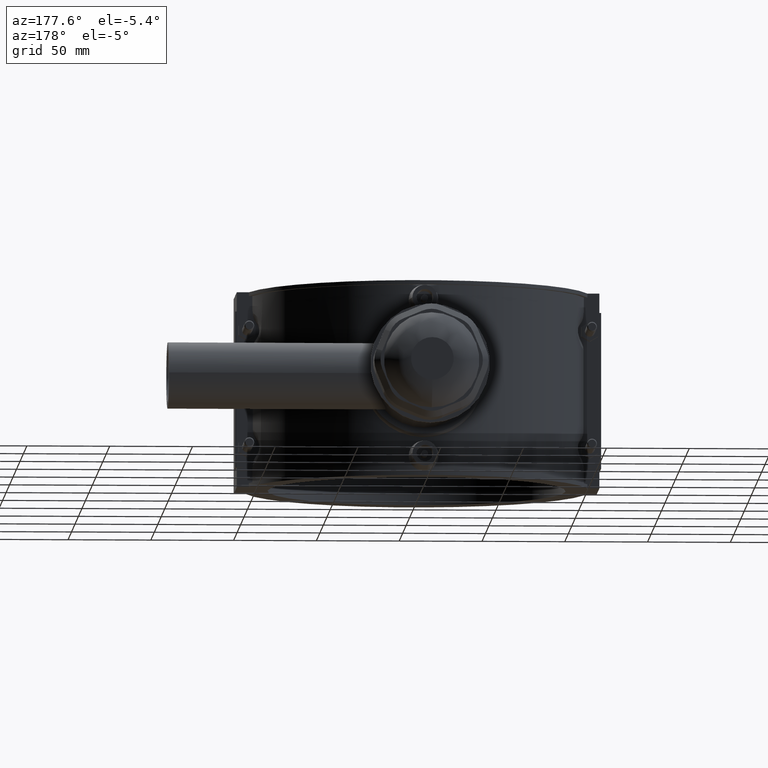
[diagram: clean part render]
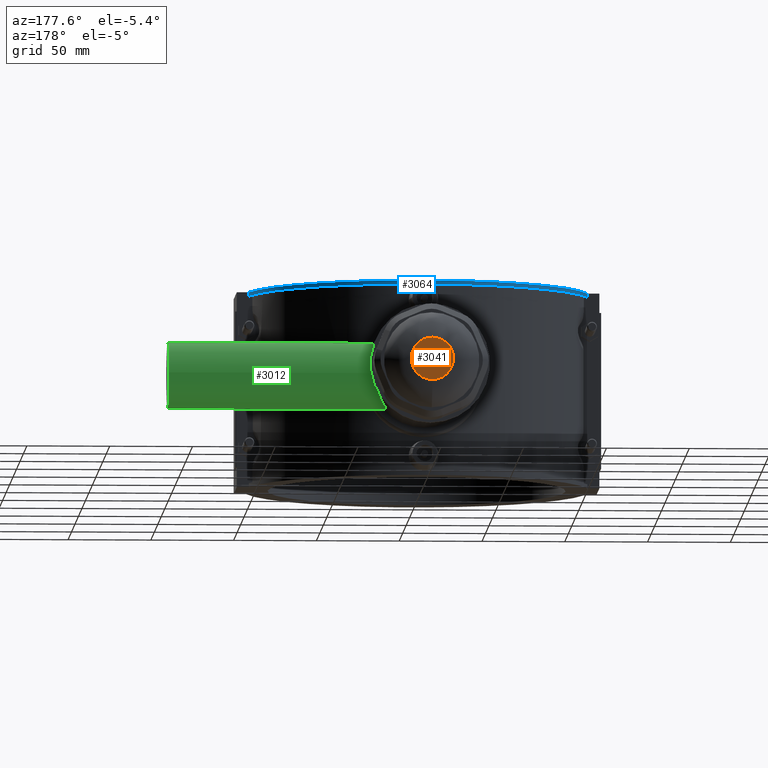
[diagram: same view with three faces highlighted in distinct colors, each labeled with its STEP entity id]
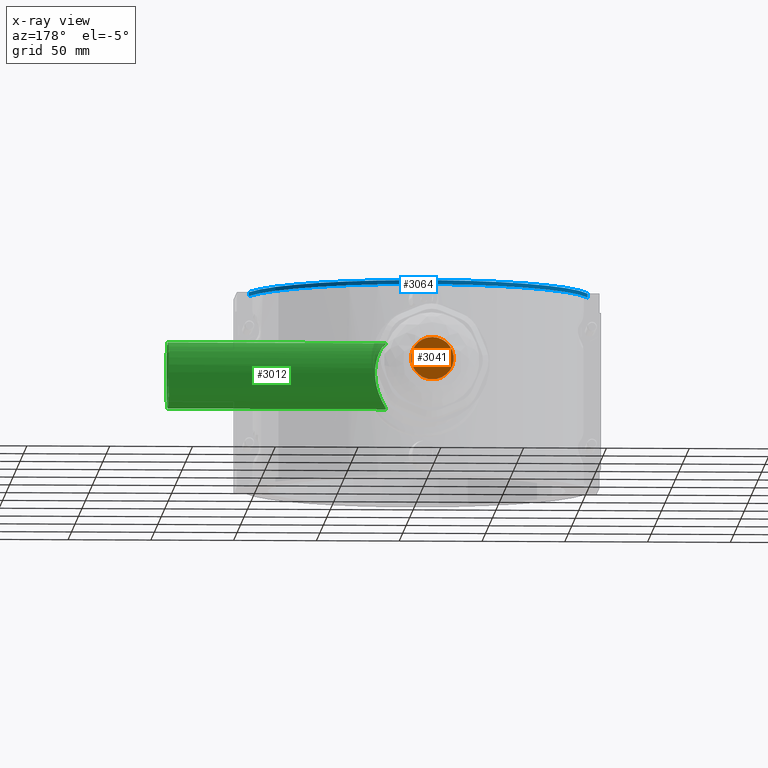
[diagram: x-ray of the same camera — body ghosted, the three highlighted faces saturated]
A machine part, auxiliary view with three faces highlighted in distinct colors.
The next image is the same camera in x-ray (body ghosted, the three faces saturated) — at least one of them is partly hidden behind the body in this view.
Their STEP definitions:

[orange] entity #3041 — the highlighted planar face has unit normal (0, 1, 0).
#613=PLANE('',#3248);
#732=CIRCLE('',#3247,12.8486865744541);
#894=FACE_OUTER_BOUND('',#1081,.T.);
#1081=EDGE_LOOP('',(#2200));
#1387=VERTEX_POINT('',#4726);
#1706=EDGE_CURVE('',#1387,#1387,#732,.T.);
#2200=ORIENTED_EDGE('',*,*,#1706,.F.);
#3041=ADVANCED_FACE('',(#894),#613,.T.);
#3247=AXIS2_PLACEMENT_3D('',#4727,#3627,#3628);
#3248=AXIS2_PLACEMENT_3D('',#4731,#3629,#3630);
#3627=DIRECTION('center_axis',(0.,-1.,-3.06161699786838E-16));
#3628=DIRECTION('ref_axis',(-6.12323399573677E-17,-3.45630043410822E-16,
1.));
#3629=DIRECTION('center_axis',(0.,1.,3.06161699786838E-16));
#3630=DIRECTION('ref_axis',(0.,0.,1.));
#4726=CARTESIAN_POINT('',(2.36026543299793E-15,228.,-12.8486865744541));
#4727=CARTESIAN_POINT('Origin',(0.,228.,4.22503145705837E-14));
#4731=CARTESIAN_POINT('Origin',(0.,228.,4.22503145705837E-14));

[blue] entity #3064 — the highlighted cylindrical surface (partial cylindrical patch) has radius 104.652 mm, axis along (0, 0, -1).
#118=LINE('',#5247,#397);
#119=LINE('',#5250,#398);
#397=VECTOR('',#3740,2.36);
#398=VECTOR('',#3743,2.36);
#748=CIRCLE('',#3286,104.652);
#749=CIRCLE('',#3287,104.652);
#917=FACE_OUTER_BOUND('',#1109,.T.);
#1109=EDGE_LOOP('',(#2310,#2311,#2312,#2313));
#1428=VERTEX_POINT('',#5243);
#1429=VERTEX_POINT('',#5244);
#1430=VERTEX_POINT('',#5246);
#1431=VERTEX_POINT('',#5248);
#1764=EDGE_CURVE('',#1428,#1429,#748,.T.);
#1765=EDGE_CURVE('',#1430,#1428,#118,.T.);
#1766=EDGE_CURVE('',#1431,#1430,#749,.T.);
#1767=EDGE_CURVE('',#1429,#1431,#119,.T.);
#2310=ORIENTED_EDGE('',*,*,#1764,.F.);
#2311=ORIENTED_EDGE('',*,*,#1765,.F.);
#2312=ORIENTED_EDGE('',*,*,#1766,.F.);
#2313=ORIENTED_EDGE('',*,*,#1767,.F.);
#2981=CYLINDRICAL_SURFACE('',#3285,104.652);
#3064=ADVANCED_FACE('',(#917),#2981,.T.);
#3285=AXIS2_PLACEMENT_3D('',#5242,#3736,#3737);
#3286=AXIS2_PLACEMENT_3D('',#5245,#3738,#3739);
#3287=AXIS2_PLACEMENT_3D('',#5249,#3741,#3742);
#3736=DIRECTION('center_axis',(0.,0.,-1.));
#3737=DIRECTION('ref_axis',(0.976614427290077,0.21499828001376,0.));
#3738=DIRECTION('center_axis',(0.,0.,1.));
#3739=DIRECTION('ref_axis',(0.976614427290077,0.21499828001376,0.));
#3740=DIRECTION('',(0.,0.,1.));
#3741=DIRECTION('center_axis',(0.,0.,-1.));
#3742=DIRECTION('ref_axis',(0.976614427290077,0.21499828001376,0.));
#3743=DIRECTION('',(0.,0.,-1.));
#5242=CARTESIAN_POINT('Origin',(0.,0.,59.));
#5243=CARTESIAN_POINT('',(102.204653044761,22.5,59.));
#5244=CARTESIAN_POINT('',(-102.204653044761,22.5,59.));
#5245=CARTESIAN_POINT('Origin',(0.,0.,59.));
#5246=CARTESIAN_POINT('',(102.204653044761,22.5,56.64));
#5247=CARTESIAN_POINT('',(102.204653044761,22.5,59.));
#5248=CARTESIAN_POINT('',(-102.204653044761,22.5,56.64));
#5249=CARTESIAN_POINT('Origin',(0.,0.,56.64));
#5250=CARTESIAN_POINT('',(-102.204653044761,22.5,59.));

[green] entity #3012 — the highlighted cylindrical surface (bore or boss wall) has radius 20 mm, axis along (1, 0, 0).
#709=CIRCLE('',#3197,20.);
#814=FACE_BOUND('',#1049,.T.);
#865=FACE_OUTER_BOUND('',#1048,.T.);
#1048=EDGE_LOOP('',(#2069,#2070,#2071,#2072,#2073,#2074,#2075,#2076,#2077));
#1049=EDGE_LOOP('',(#2078));
#1278=B_SPLINE_CURVE_WITH_KNOTS('',3,(#4445,#4446,#4447,#4448),
 .UNSPECIFIED.,.F.,.F.,(4,4),(1.60551107625556,2.11294538243362),
 .UNSPECIFIED.);
#1279=B_SPLINE_CURVE_WITH_KNOTS('',3,(#4450,#4451,#4452,#4453,#4454,#4455,
#4456,#4457,#4458,#4459),.UNSPECIFIED.,.F.,.F.,(4,2,2,2,4),(-0.335176611796407,
-0.261969658802018,-0.186269817086855,-0.0576919761793665,0.),
 .UNSPECIFIED.);
#1280=B_SPLINE_CURVE_WITH_KNOTS('',3,(#4461,#4462,#4463,#4464,#4465,#4466),
 .UNSPECIFIED.,.F.,.F.,(4,2,4),(10.8634433364735,11.207597531341,11.2882790206673),
 .UNSPECIFIED.);
#1281=B_SPLINE_CURVE_WITH_KNOTS('',3,(#4468,#4469,#4470,#4471,#4472,#4473,
#4474,#4475,#4476,#4477,#4478,#4479,#4480,#4481,#4482,#4483,#4484,#4485,
#4486,#4487,#4488,#4489,#4490,#4491,#4492,#4493),.UNSPECIFIED.,.F.,.F.,
(4,2,2,2,2,2,2,2,2,2,2,2,4),(1.97694545310531,2.44457225565317,2.8520009649287,
3.25942967420423,3.73233702573547,3.96879070150109,4.2052443772667,4.44169805303232,
4.67815172879794,5.15105908032918,5.5584877896047,5.96591649888023,6.43354330142809),
 .UNSPECIFIED.);
#1282=B_SPLINE_CURVE_WITH_KNOTS('',3,(#4495,#4496,#4497,#4498,#4499,#4500),
 .UNSPECIFIED.,.F.,.F.,(4,2,4),(7.26650819850331,7.3471896876748,7.69134388254225),
 .UNSPECIFIED.);
#1283=B_SPLINE_CURVE_WITH_KNOTS('',3,(#4502,#4503,#4504,#4505,#4506,#4507,
#4508,#4509),.UNSPECIFIED.,.F.,.F.,(4,2,2,4),(-0.335116118845591,-0.232567119719417,
-0.126072084848109,0.),.UNSPECIFIED.);
#1284=B_SPLINE_CURVE_WITH_KNOTS('',3,(#4511,#4512,#4513,#4514),
 .UNSPECIFIED.,.F.,.F.,(4,4),(1.07536251924016,1.58279682539556),
 .UNSPECIFIED.);
#1285=B_SPLINE_CURVE_WITH_KNOTS('',3,(#4516,#4517,#4518,#4519,#4520,#4521),
 .UNSPECIFIED.,.F.,.F.,(4,2,4),(0.,0.393500533103456,0.713799349997413),
 .UNSPECIFIED.);
#1286=B_SPLINE_CURVE_WITH_KNOTS('',3,(#4522,#4523,#4524,#4525,#4526,#4527,
#4528,#4529,#4530,#4531,#4532,#4533,#4534,#4535,#4536,#4537,#4538,#4539,
#4540,#4541,#4542,#4543,#4544,#4545,#4546,#4547,#4548,#4549,#4550,#4551,
#4552,#4553,#4554,#4555,#4556,#4557,#4558,#4559),.UNSPECIFIED.,.F.,.F.,
(4,2,2,2,2,2,2,2,2,2,2,2,2,2,2,2,2,2,4),(5.55096622759623,5.87126504449018,
6.26476557759364,6.6582661106971,7.05176664380055,7.44526717690401,7.83876771000746,
8.22836287410321,8.61795803819896,9.00755320229471,9.39714836639046,9.78674353048621,
10.176338694582,10.5659338586777,10.9555290227735,11.3490295558769,11.7425300889804,
12.1360306220838,12.5295311551873),.UNSPECIFIED.);
#1334=VERTEX_POINT('',#4443);
#1335=VERTEX_POINT('',#4444);
#1336=VERTEX_POINT('',#4449);
#1337=VERTEX_POINT('',#4460);
#1338=VERTEX_POINT('',#4467);
#1339=VERTEX_POINT('',#4494);
#1340=VERTEX_POINT('',#4501);
#1341=VERTEX_POINT('',#4510);
#1342=VERTEX_POINT('',#4515);
#1343=VERTEX_POINT('',#4560);
#1629=EDGE_CURVE('',#1334,#1335,#1278,.T.);
#1630=EDGE_CURVE('',#1336,#1334,#1279,.T.);
#1631=EDGE_CURVE('',#1337,#1336,#1280,.T.);
#1632=EDGE_CURVE('',#1338,#1337,#1281,.T.);
#1633=EDGE_CURVE('',#1339,#1338,#1282,.T.);
#1634=EDGE_CURVE('',#1340,#1339,#1283,.T.);
#1635=EDGE_CURVE('',#1341,#1340,#1284,.T.);
#1636=EDGE_CURVE('',#1342,#1341,#1285,.T.);
#1637=EDGE_CURVE('',#1335,#1342,#1286,.T.);
#1638=EDGE_CURVE('',#1343,#1343,#709,.T.);
#2069=ORIENTED_EDGE('',*,*,#1629,.F.);
#2070=ORIENTED_EDGE('',*,*,#1630,.F.);
#2071=ORIENTED_EDGE('',*,*,#1631,.F.);
#2072=ORIENTED_EDGE('',*,*,#1632,.F.);
#2073=ORIENTED_EDGE('',*,*,#1633,.F.);
#2074=ORIENTED_EDGE('',*,*,#1634,.F.);
#2075=ORIENTED_EDGE('',*,*,#1635,.F.);
#2076=ORIENTED_EDGE('',*,*,#1636,.F.);
#2077=ORIENTED_EDGE('',*,*,#1637,.F.);
#2078=ORIENTED_EDGE('',*,*,#1638,.F.);
#2964=CYLINDRICAL_SURFACE('',#3196,20.);
#3012=ADVANCED_FACE('',(#865,#814),#2964,.T.);
#3196=AXIS2_PLACEMENT_3D('',#4442,#3480,#3481);
#3197=AXIS2_PLACEMENT_3D('',#4561,#3482,#3483);
#3480=DIRECTION('center_axis',(1.,0.,0.));
#3481=DIRECTION('ref_axis',(0.,1.,0.));
#3482=DIRECTION('center_axis',(1.,0.,0.));
#3483=DIRECTION('ref_axis',(0.,0.,-1.));
#4442=CARTESIAN_POINT('Origin',(77.5,111.,0.));
#4443=CARTESIAN_POINT('',(29.4997828747627,102.54514335808,18.1249937698954));
#4444=CARTESIAN_POINT('',(24.2176461043326,103.919436262809,18.7046950567108));
#4445=CARTESIAN_POINT('Ctrl Pts',(29.4997828748019,102.545143358131,18.1249937700799));
#4446=CARTESIAN_POINT('Ctrl Pts',(27.7542614247224,103.04728809258,18.3592317398744));
#4447=CARTESIAN_POINT('Ctrl Pts',(25.9866342838377,103.507186819952,18.5486402027055));
#4448=CARTESIAN_POINT('Ctrl Pts',(24.2176461043126,103.919436262743,18.7046950566599));
#4449=CARTESIAN_POINT('',(31.7278896097632,100.480542830239,17.0100270689586));
#4450=CARTESIAN_POINT('Ctrl Pts',(31.7278896109168,100.480542829474,17.0100270675116));
#4451=CARTESIAN_POINT('Ctrl Pts',(31.6614695979229,100.68087320832,17.1339167492777));
#4452=CARTESIAN_POINT('Ctrl Pts',(31.5675233404094,100.877436520748,17.2505155977374));
#4453=CARTESIAN_POINT('Ctrl Pts',(31.3315169196019,101.258435492564,17.4685925897631));
#4454=CARTESIAN_POINT('Ctrl Pts',(31.1873788087171,101.443122978376,17.5699586508655));
#4455=CARTESIAN_POINT('Ctrl Pts',(30.7447614026522,101.903615903482,17.8147000402603));
#4456=CARTESIAN_POINT('Ctrl Pts',(30.4068716596323,102.154982887214,17.938998765176));
#4457=CARTESIAN_POINT('Ctrl Pts',(29.8608708496887,102.42261318567,18.0675646392701));
#4458=CARTESIAN_POINT('Ctrl Pts',(29.6830762475632,102.492414242721,18.1003969554664));
#4459=CARTESIAN_POINT('Ctrl Pts',(29.4997828745389,102.545143358206,18.1249937701152));
#4460=CARTESIAN_POINT('',(32.9801004346793,97.1548916695393,14.4330514901819));
#4461=CARTESIAN_POINT('Ctrl Pts',(32.9801004346856,97.1548916695482,14.4330514901754));
#4462=CARTESIAN_POINT('Ctrl Pts',(32.6448797218443,97.9534128882644,15.1990442384737));
#4463=CARTESIAN_POINT('Ctrl Pts',(32.2967539652069,98.8392658881372,15.9201431449833));
#4464=CARTESIAN_POINT('Ctrl Pts',(31.8826822568503,100.02049328228,16.7189644007199));
#4465=CARTESIAN_POINT('Ctrl Pts',(31.8047558449092,100.248705449687,16.8666526109583));
#4466=CARTESIAN_POINT('Ctrl Pts',(31.7278896104632,100.480542830843,17.0100270683577));
#4467=CARTESIAN_POINT('',(32.9801004346793,97.1548916695393,-14.4330514901819));
#4468=CARTESIAN_POINT('Ctrl Pts',(32.9801004346713,97.1548916695345,-14.4330514901623));
#4469=CARTESIAN_POINT('Ctrl Pts',(34.4460894903075,96.6572485199187,-13.9556802758324));
#4470=CARTESIAN_POINT('Ctrl Pts',(35.8625648911125,96.1391408227268,-13.4101079060793));
#4471=CARTESIAN_POINT('Ctrl Pts',(38.3884069906622,95.1560968213612,-12.2263655163623));
#4472=CARTESIAN_POINT('Ctrl Pts',(39.5133641750222,94.6931305715024,-11.6098193058994));
#4473=CARTESIAN_POINT('Ctrl Pts',(41.6357726177857,93.7793013589584,-10.2053630069397));
#4474=CARTESIAN_POINT('Ctrl Pts',(42.6339308368646,93.3280454488633,-9.41877737989432));
#4475=CARTESIAN_POINT('Ctrl Pts',(44.6060808205982,92.4036067023675,-7.45229447869429));
#4476=CARTESIAN_POINT('Ctrl Pts',(45.6136294398214,91.9062975831728,-6.14080324169998));
#4477=CARTESIAN_POINT('Ctrl Pts',(46.6595963427124,91.3772110495027,-3.9390272432339));
#4478=CARTESIAN_POINT('Ctrl Pts',(46.9334045520541,91.2362742840039,-3.16615143822056));
#4479=CARTESIAN_POINT('Ctrl Pts',(47.2984089167867,91.0475849311597,-1.59075524144611));
#4480=CARTESIAN_POINT('Ctrl Pts',(47.3894503027837,91.,-0.788178919218727));
#4481=CARTESIAN_POINT('Ctrl Pts',(47.3894503027837,91.,0.788178919218729));
#4482=CARTESIAN_POINT('Ctrl Pts',(47.2984089167867,91.0475849311597,1.59075524144612));
#4483=CARTESIAN_POINT('Ctrl Pts',(46.9334045520541,91.2362742840039,3.16615143822056));
#4484=CARTESIAN_POINT('Ctrl Pts',(46.6595963427124,91.3772110495027,3.93902724323391));
#4485=CARTESIAN_POINT('Ctrl Pts',(45.6136294398214,91.9062975831728,6.14080324169998));
#4486=CARTESIAN_POINT('Ctrl Pts',(44.6060808205982,92.4036067023675,7.4522944786943));
#4487=CARTESIAN_POINT('Ctrl Pts',(42.6339308368646,93.3280454488633,9.41877737989433));
#4488=CARTESIAN_POINT('Ctrl Pts',(41.6357726177857,93.7793013589584,10.2053630069397));
#4489=CARTESIAN_POINT('Ctrl Pts',(39.5133641750222,94.6931305715024,11.6098193058994));
#4490=CARTESIAN_POINT('Ctrl Pts',(38.3884069906622,95.1560968213612,12.2263655163624));
#4491=CARTESIAN_POINT('Ctrl Pts',(35.8625648911125,96.1391408227268,13.4101079060793));
#4492=CARTESIAN_POINT('Ctrl Pts',(34.4460894903075,96.6572485199187,13.9556802758324));
#4493=CARTESIAN_POINT('Ctrl Pts',(32.9801004346713,97.1548916695345,14.4330514901623));
#4494=CARTESIAN_POINT('',(31.7278896108887,100.480542829493,-17.0100270675468));
#4495=CARTESIAN_POINT('Ctrl Pts',(31.7278896109058,100.480542829508,-17.0100270675322));
#4496=CARTESIAN_POINT('Ctrl Pts',(31.8047558452083,100.248705448811,-16.8666526103914));
#4497=CARTESIAN_POINT('Ctrl Pts',(31.8826822570013,100.02049328185,-16.7189644004287));
#4498=CARTESIAN_POINT('Ctrl Pts',(32.2967539652069,98.8392658881372,-15.9201431449833));
#4499=CARTESIAN_POINT('Ctrl Pts',(32.6448797218443,97.9534128882644,-15.1990442384737));
#4500=CARTESIAN_POINT('Ctrl Pts',(32.9801004346856,97.1548916695482,-14.4330514901754));
#4501=CARTESIAN_POINT('',(29.4997828745637,102.545143358192,-18.1249937700908));
#4502=CARTESIAN_POINT('Ctrl Pts',(29.4997828745388,102.545143358206,-18.1249937701152));
#4503=CARTESIAN_POINT('Ctrl Pts',(29.8253151715807,102.451495509396,-18.0813093889485));
#4504=CARTESIAN_POINT('Ctrl Pts',(30.1337727839399,102.30415677326,-18.011757939333));
#4505=CARTESIAN_POINT('Ctrl Pts',(30.6977833758124,101.933775586841,-17.8282896910225));
#4506=CARTESIAN_POINT('Ctrl Pts',(30.9534723951811,101.706422869885,-17.7118925960851));
#4507=CARTESIAN_POINT('Ctrl Pts',(31.4189186525512,101.157834171867,-17.4139682991234));
#4508=CARTESIAN_POINT('Ctrl Pts',(31.6138356691612,100.824542601996,-17.2227657574237));
#4509=CARTESIAN_POINT('Ctrl Pts',(31.7278896109168,100.480542829474,-17.0100270675116));
#4510=CARTESIAN_POINT('',(24.2176461043326,103.919436262809,-18.7046950567108));
#4511=CARTESIAN_POINT('Ctrl Pts',(24.2176461043126,103.919436262743,-18.7046950566599));
#4512=CARTESIAN_POINT('Ctrl Pts',(25.9866338886744,103.507186912042,-18.5486402375657));
#4513=CARTESIAN_POINT('Ctrl Pts',(27.7542608008653,103.047288272045,-18.3592318235878));
#4514=CARTESIAN_POINT('Ctrl Pts',(29.4997828745681,102.545143358198,-18.1249937701113));
#4515=CARTESIAN_POINT('',(23.1594473163761,111.,-20.));
#4516=CARTESIAN_POINT('Ctrl Pts',(23.1594473163761,111.,-20.));
#4517=CARTESIAN_POINT('Ctrl Pts',(23.1594473163761,109.688331556322,-20.));
#4518=CARTESIAN_POINT('Ctrl Pts',(23.2743259550548,108.354480801617,-19.8691713621282));
#4519=CARTESIAN_POINT('Ctrl Pts',(23.6739239747007,105.980287719745,-19.3902978118822));
#4520=CARTESIAN_POINT('Ctrl Pts',(23.9218594248282,104.931115190283,-19.0876607829779));
#4521=CARTESIAN_POINT('Ctrl Pts',(24.2176461043484,103.919436262877,-18.7046950567108));
#4522=CARTESIAN_POINT('Ctrl Pts',(24.2176461043484,103.919436262877,18.7046950567108));
#4523=CARTESIAN_POINT('Ctrl Pts',(23.9218594248282,104.931115190283,19.0876607829779));
#4524=CARTESIAN_POINT('Ctrl Pts',(23.6739239747007,105.980287719745,19.3902978118822));
#4525=CARTESIAN_POINT('Ctrl Pts',(23.2743259550548,108.354480801616,19.8691713621282));
#4526=CARTESIAN_POINT('Ctrl Pts',(23.1594473163761,109.688331556322,20.));
#4527=CARTESIAN_POINT('Ctrl Pts',(23.1594473163761,112.311668443678,20.));
#4528=CARTESIAN_POINT('Ctrl Pts',(23.2743259550548,113.645519198383,19.8691713621282));
#4529=CARTESIAN_POINT('Ctrl Pts',(23.7149036433318,116.263191078892,19.341188260682));
#4530=CARTESIAN_POINT('Ctrl Pts',(24.0392889571048,117.547295747394,18.9443442137066));
#4531=CARTESIAN_POINT('Ctrl Pts',(24.8157759065117,119.989028233019,17.9151543881181));
#4532=CARTESIAN_POINT('Ctrl Pts',(25.2673468184926,121.149250789195,17.2819440746868));
#4533=CARTESIAN_POINT('Ctrl Pts',(26.200984047049,123.290648544021,15.8307561763519));
#4534=CARTESIAN_POINT('Ctrl Pts',(26.6824016365569,124.271858555426,15.0124126920357));
#4535=CARTESIAN_POINT('Ctrl Pts',(27.5850050176066,126.003775465896,13.2804957815664));
#4536=CARTESIAN_POINT('Ctrl Pts',(28.0410430223188,126.820558023233,12.3038928737231));
#4537=CARTESIAN_POINT('Ctrl Pts',(28.8864156904468,128.274691718892,10.1617351946478));
#4538=CARTESIAN_POINT('Ctrl Pts',(29.2752579303965,128.912134657191,8.99604844208787));
#4539=CARTESIAN_POINT('Ctrl Pts',(29.919471976457,129.946731965989,6.54177480490095));
#4540=CARTESIAN_POINT('Ctrl Pts',(30.1751270315782,130.344732971532,5.25059734327164));
#4541=CARTESIAN_POINT('Ctrl Pts',(30.5154888274388,130.871473542444,2.62906931549225));
#4542=CARTESIAN_POINT('Ctrl Pts',(30.6,131.,1.29865054698583));
#4543=CARTESIAN_POINT('Ctrl Pts',(30.6,131.,-1.29865054698582));
#4544=CARTESIAN_POINT('Ctrl Pts',(30.5154888274388,130.871473542444,-2.62906931549224));
#4545=CARTESIAN_POINT('Ctrl Pts',(30.1751270315782,130.344732971532,-5.25059734327163));
#4546=CARTESIAN_POINT('Ctrl Pts',(29.919471976457,129.946731965989,-6.54177480490094));
#4547=CARTESIAN_POINT('Ctrl Pts',(29.2752579303965,128.912134657191,-8.99604844208786));
#4548=CARTESIAN_POINT('Ctrl Pts',(28.8864156904468,128.274691718892,-10.1617351946478));
#4549=CARTESIAN_POINT('Ctrl Pts',(28.0410430223188,126.820558023233,-12.3038928737231));
#4550=CARTESIAN_POINT('Ctrl Pts',(27.5850050176066,126.003775465896,-13.2804957815664));
#4551=CARTESIAN_POINT('Ctrl Pts',(26.6824016365568,124.271858555426,-15.0124126920356));
#4552=CARTESIAN_POINT('Ctrl Pts',(26.200984047049,123.290648544021,-15.8307561763519));
#4553=CARTESIAN_POINT('Ctrl Pts',(25.2673468184926,121.149250789195,-17.2819440746868));
#4554=CARTESIAN_POINT('Ctrl Pts',(24.8157759065117,119.989028233019,-17.9151543881181));
#4555=CARTESIAN_POINT('Ctrl Pts',(24.0392889571048,117.547295747394,-18.9443442137066));
#4556=CARTESIAN_POINT('Ctrl Pts',(23.7149036433318,116.263191078892,-19.341188260682));
#4557=CARTESIAN_POINT('Ctrl Pts',(23.2743259550548,113.645519198384,-19.8691713621283));
#4558=CARTESIAN_POINT('Ctrl Pts',(23.1594473163761,112.311668443678,-20.));
#4559=CARTESIAN_POINT('Ctrl Pts',(23.1594473163761,111.,-20.));
#4560=CARTESIAN_POINT('',(155.,131.,0.));
#4561=CARTESIAN_POINT('Origin',(155.,111.,0.));